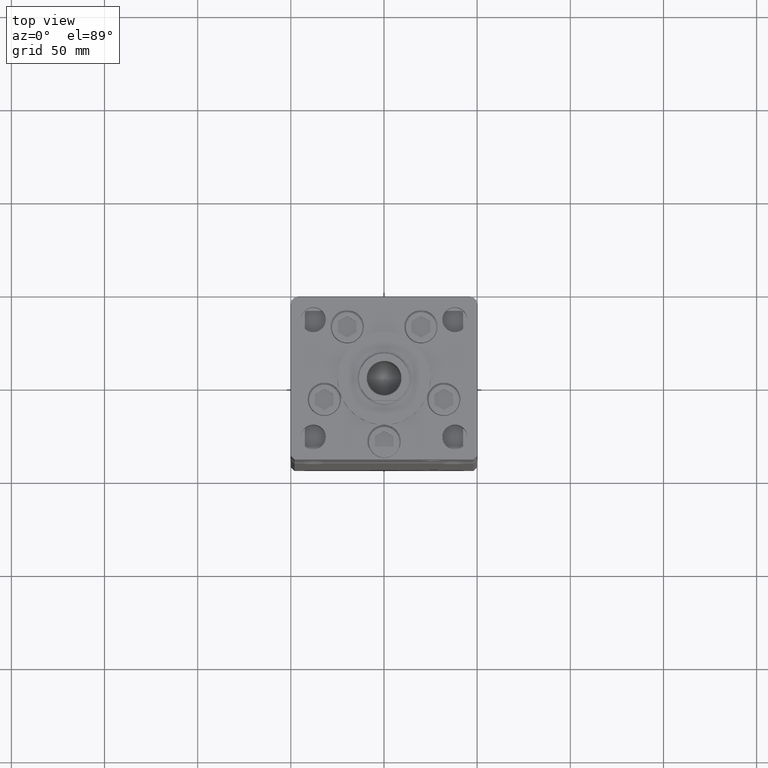
[diagram: clean part render]
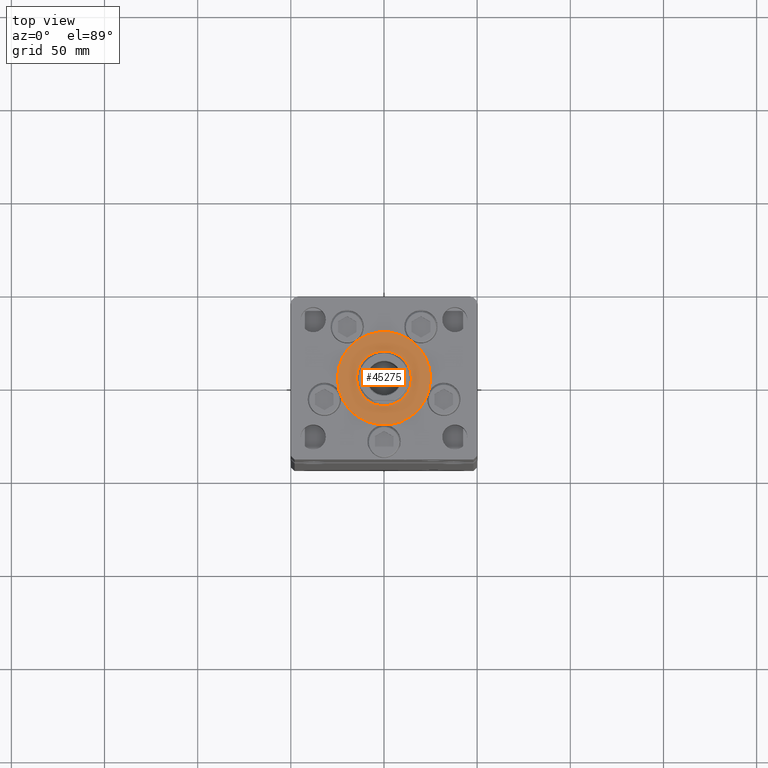
[diagram: same view with one face highlighted and labeled with its STEP entity id]
A machine part, top view. The second image highlights one B-rep face of the part: STEP entity #45275.
In plain terms, the highlighted planar face has unit normal (0, 0, 1).
Its self-contained STEP definition (entity closure, byte-faithful):
#658 = CIRCLE ( 'NONE', #39247, 14.75000000000000178 ) ;
#922 = DIRECTION ( 'NONE',  ( 1.000000000000000000, 0.000000000000000000, -0.000000000000000000 ) ) ;
#3200 = CARTESIAN_POINT ( 'NONE',  ( 0.000000000000000000, -6.938893903907228378E-15, 2.000000000000000000 ) ) ;
#3237 = CARTESIAN_POINT ( 'NONE',  ( 0.000000000000000000, -6.938893903907228378E-15, 2.000000000000000000 ) ) ;
#4102 = DIRECTION ( 'NONE',  ( 0.000000000000000000, 0.000000000000000000, 1.000000000000000000 ) ) ;
#6744 = DIRECTION ( 'NONE',  ( 0.000000000000000000, 0.000000000000000000, 1.000000000000000000 ) ) ;
#6905 = ORIENTED_EDGE ( 'NONE', *, *, #15745, .T. ) ;
#11262 = DIRECTION ( 'NONE',  ( 0.000000000000000000, 0.000000000000000000, 1.000000000000000000 ) ) ;
#11565 = AXIS2_PLACEMENT_3D ( 'NONE', #52149, #6744, #44091 ) ;
#11720 = EDGE_CURVE ( 'NONE', #12449, #28047, #658, .T. ) ;
#12449 = VERTEX_POINT ( 'NONE', #36638 ) ;
#12848 = AXIS2_PLACEMENT_3D ( 'NONE', #3200, #11262, #39495 ) ;
#14904 = CIRCLE ( 'NONE', #37236, 25.00000000000000000 ) ;
#15552 = AXIS2_PLACEMENT_3D ( 'NONE', #33979, #50374, #922 ) ;
#15745 = EDGE_CURVE ( 'NONE', #18369, #33800, #14904, .T. ) ;
#16232 = CARTESIAN_POINT ( 'NONE',  ( -14.75000000000000178, -5.132539875164881787E-15, 2.000000000000000000 ) ) ;
#18369 = VERTEX_POINT ( 'NONE', #46780 ) ;
#20509 = CARTESIAN_POINT ( 'NONE',  ( 0.000000000000000000, -6.938893903907228378E-15, 2.000000000000000000 ) ) ;
#20863 = ORIENTED_EDGE ( 'NONE', *, *, #21624, .T. ) ;
#21624 = EDGE_CURVE ( 'NONE', #33800, #18369, #36467, .T. ) ;
#21633 = PLANE ( 'NONE',  #15552 ) ;
#24476 = DIRECTION ( 'NONE',  ( 1.000000000000000000, 0.000000000000000000, 0.000000000000000000 ) ) ;
#26073 = ORIENTED_EDGE ( 'NONE', *, *, #35654, .F. ) ;
#28047 = VERTEX_POINT ( 'NONE', #16232 ) ;
#28102 = ORIENTED_EDGE ( 'NONE', *, *, #11720, .F. ) ;
#30500 = EDGE_LOOP ( 'NONE', ( #20863, #6905 ) ) ;
#31993 = DIRECTION ( 'NONE',  ( 0.000000000000000000, 0.000000000000000000, 1.000000000000000000 ) ) ;
#33800 = VERTEX_POINT ( 'NONE', #46703 ) ;
#33979 = CARTESIAN_POINT ( 'NONE',  ( 0.000000000000000000, -6.938893903907228378E-15, 2.000000000000000000 ) ) ;
#35654 = EDGE_CURVE ( 'NONE', #28047, #12449, #41192, .T. ) ;
#36467 = CIRCLE ( 'NONE', #11565, 25.00000000000000000 ) ;
#36638 = CARTESIAN_POINT ( 'NONE',  ( 14.75000000000000178, -6.938893903907228378E-15, 2.000000000000000000 ) ) ;
#37236 = AXIS2_PLACEMENT_3D ( 'NONE', #3237, #31993, #24476 ) ;
#39247 = AXIS2_PLACEMENT_3D ( 'NONE', #20509, #4102, #53008 ) ;
#39495 = DIRECTION ( 'NONE',  ( 1.000000000000000000, 0.000000000000000000, 0.000000000000000000 ) ) ;
#41192 = CIRCLE ( 'NONE', #12848, 14.75000000000000178 ) ;
#41782 = FACE_OUTER_BOUND ( 'NONE', #30500, .T. ) ;
#42048 = FACE_BOUND ( 'NONE', #48749, .T. ) ;
#44091 = DIRECTION ( 'NONE',  ( 1.000000000000000000, 0.000000000000000000, 0.000000000000000000 ) ) ;
#45275 = ADVANCED_FACE ( 'NONE', ( #42048, #41782 ), #21633, .T. ) ;
#46703 = CARTESIAN_POINT ( 'NONE',  ( -25.00000000000000000, -6.938893903907228378E-15, 2.000000000000000000 ) ) ;
#46780 = CARTESIAN_POINT ( 'NONE',  ( 25.00000000000000000, -3.877276906038844941E-15, 2.000000000000000000 ) ) ;
#48749 = EDGE_LOOP ( 'NONE', ( #28102, #26073 ) ) ;
#50374 = DIRECTION ( 'NONE',  ( 0.000000000000000000, 0.000000000000000000, 1.000000000000000000 ) ) ;
#52149 = CARTESIAN_POINT ( 'NONE',  ( 0.000000000000000000, -6.938893903907228378E-15, 2.000000000000000000 ) ) ;
#53008 = DIRECTION ( 'NONE',  ( 1.000000000000000000, 0.000000000000000000, 0.000000000000000000 ) ) ;